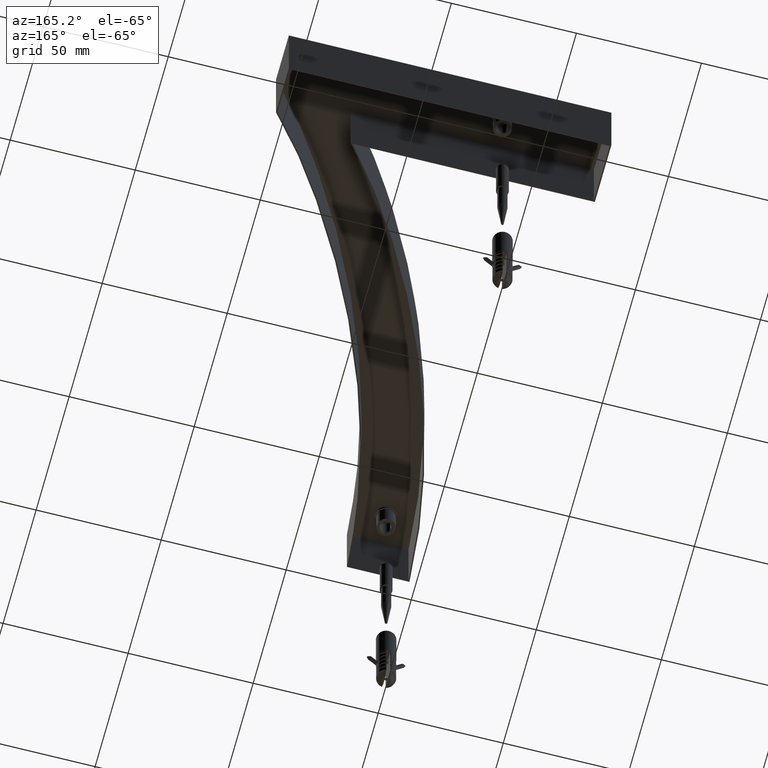
[diagram: clean part render]
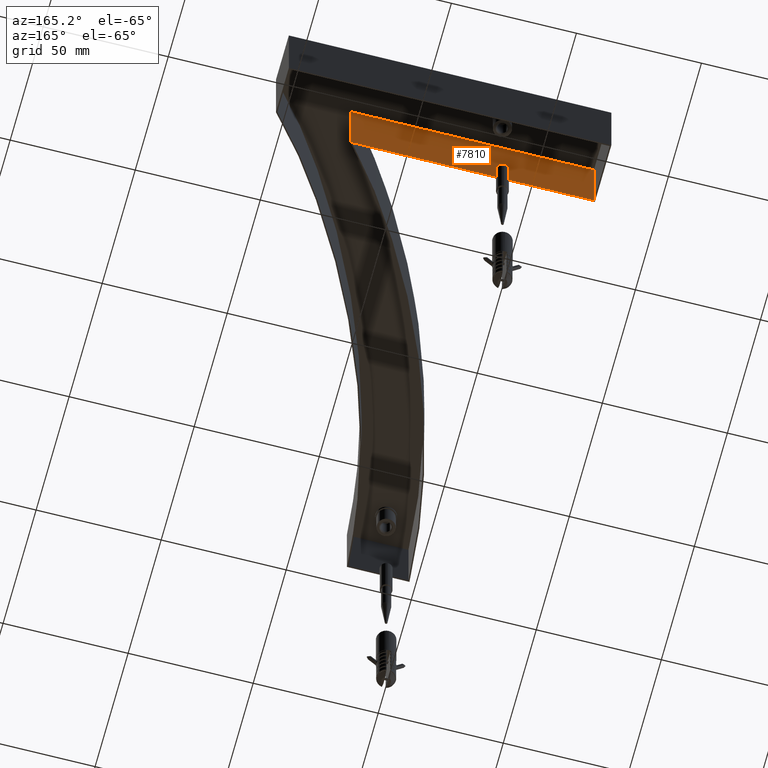
[diagram: same view with one face highlighted and labeled with its STEP entity id]
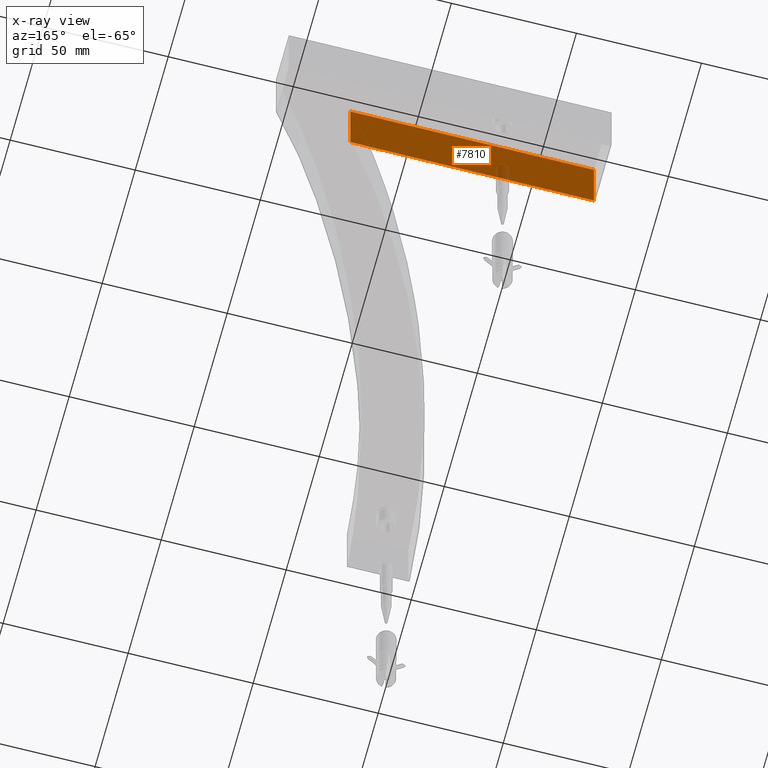
[diagram: x-ray of the same camera — body ghosted, the highlighted face saturated]
A machine part, auxiliary view. The second image highlights one B-rep face of the part: STEP entity #7810.
The next image is the same camera in x-ray: the body ghosted, the highlighted face saturated — about 2% of this face is hidden behind the body in this view.
In plain terms, the highlighted planar face has unit normal (0, 1, 0).
Its self-contained STEP definition (entity closure, byte-faithful):
#290 = DIRECTION ( 'NONE',  ( 0.0000000000000000000, -0.0000000000000000000, 1.000000000000000000 ) ) ;
#450 = EDGE_LOOP ( 'NONE', ( #4719, #21639, #11610, #6493 ) ) ;
#1080 = FACE_OUTER_BOUND ( 'NONE', #450, .T. ) ;
#2355 = CARTESIAN_POINT ( 'NONE',  ( -39.88153854441506500, 175.4999999999997200, 0.0000000000000000000 ) ) ;
#2376 = EDGE_CURVE ( 'NONE', #21140, #11526, #25391, .T. ) ;
#3109 = DIRECTION ( 'NONE',  ( -0.0000000000000000000, -0.0000000000000000000, 1.000000000000000000 ) ) ;
#3138 = VECTOR ( 'NONE', #23384, 1000.000000000000000 ) ;
#4187 = DIRECTION ( 'NONE',  ( -1.000000000000000000, 0.0000000000000000000, 0.0000000000000000000 ) ) ;
#4719 = ORIENTED_EDGE ( 'NONE', *, *, #2376, .F. ) ;
#5682 = VECTOR ( 'NONE', #23253, 1000.000000000000000 ) ;
#5941 = VECTOR ( 'NONE', #4187, 1000.000000000000000 ) ;
#6493 = ORIENTED_EDGE ( 'NONE', *, *, #24446, .T. ) ;
#6611 = CARTESIAN_POINT ( 'NONE',  ( 57.52014920433928300, 175.4999999999997200, -28.00000000000000000 ) ) ;
#7420 = LINE ( 'NONE', #15431, #24114 ) ;
#7810 = ADVANCED_FACE ( 'NONE', ( #1080 ), #25432, .T. ) ;
#7837 = EDGE_CURVE ( 'NONE', #20934, #21140, #11246, .T. ) ;
#10447 = VERTEX_POINT ( 'NONE', #20150 ) ;
#11022 = CARTESIAN_POINT ( 'NONE',  ( 57.52014920433928300, 175.4999999999997200, 0.0000000000000000000 ) ) ;
#11246 = LINE ( 'NONE', #19036, #5682 ) ;
#11526 = VERTEX_POINT ( 'NONE', #2355 ) ;
#11610 = ORIENTED_EDGE ( 'NONE', *, *, #11857, .T. ) ;
#11857 = EDGE_CURVE ( 'NONE', #20934, #10447, #26591, .T. ) ;
#12895 = DIRECTION ( 'NONE',  ( 0.0000000000000000000, 1.000000000000000000, 0.0000000000000000000 ) ) ;
#13416 = AXIS2_PLACEMENT_3D ( 'NONE', #6611, #12895, #290 ) ;
#15431 = CARTESIAN_POINT ( 'NONE',  ( -39.88153854441506500, 175.4999999999997200, -28.00000000000000000 ) ) ;
#18525 = CARTESIAN_POINT ( 'NONE',  ( 57.52014920433929000, 175.4999999999997200, -28.00000000000000000 ) ) ;
#18814 = CARTESIAN_POINT ( 'NONE',  ( 57.52014920433928300, 175.4999999999997200, -28.00000000000000000 ) ) ;
#19036 = CARTESIAN_POINT ( 'NONE',  ( 57.52014920433928300, 175.4999999999997200, -28.00000000000000000 ) ) ;
#20150 = CARTESIAN_POINT ( 'NONE',  ( -39.88153854441506500, 175.4999999999997200, -28.00000000000000000 ) ) ;
#20934 = VERTEX_POINT ( 'NONE', #18525 ) ;
#21140 = VERTEX_POINT ( 'NONE', #25632 ) ;
#21639 = ORIENTED_EDGE ( 'NONE', *, *, #7837, .F. ) ;
#23253 = DIRECTION ( 'NONE',  ( -0.0000000000000000000, -0.0000000000000000000, 1.000000000000000000 ) ) ;
#23384 = DIRECTION ( 'NONE',  ( -1.000000000000000000, 0.0000000000000000000, 0.0000000000000000000 ) ) ;
#24114 = VECTOR ( 'NONE', #3109, 1000.000000000000000 ) ;
#24446 = EDGE_CURVE ( 'NONE', #10447, #11526, #7420, .T. ) ;
#25391 = LINE ( 'NONE', #11022, #3138 ) ;
#25432 = PLANE ( 'NONE',  #13416 ) ;
#25632 = CARTESIAN_POINT ( 'NONE',  ( 57.52014920433928300, 175.4999999999997200, 0.0000000000000000000 ) ) ;
#26591 = LINE ( 'NONE', #18814, #5941 ) ;